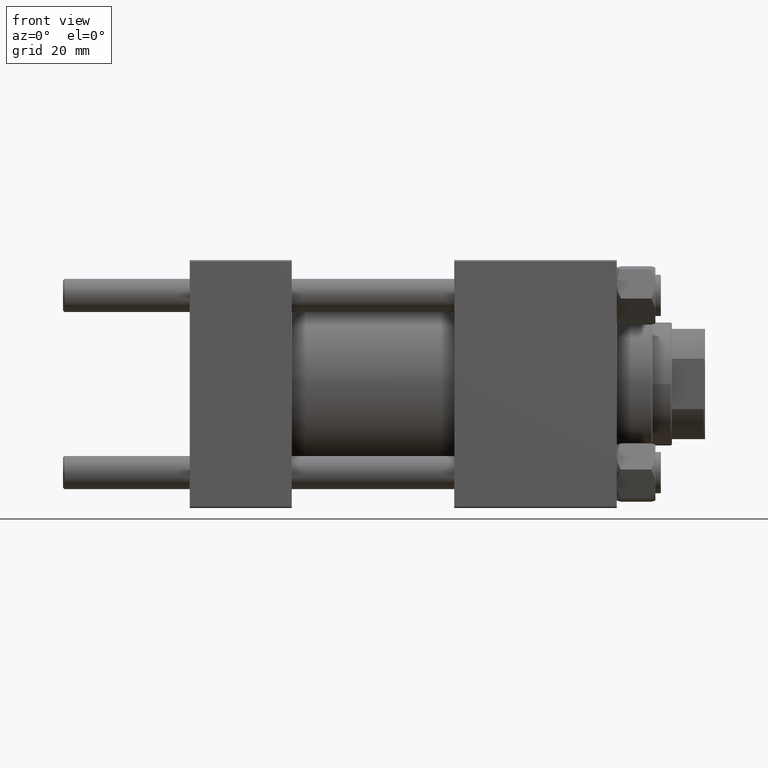
[diagram: clean part render]
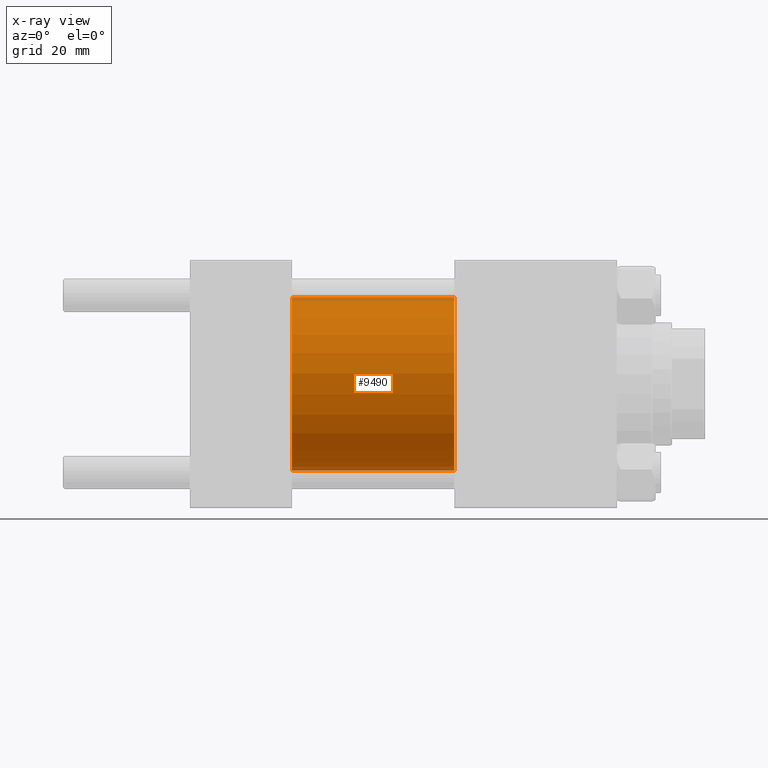
[diagram: x-ray — body ghosted, one internal face saturated and labeled with its STEP entity id]
A machine part, front view, then the same camera in x-ray: the body is ghosted and one INTERNAL B-rep face — a face not visible from any outside direction — is saturated and labeled: STEP entity #9490.
In plain terms, the highlighted cylindrical surface (partial cylindrical patch) has radius 31.5 mm, axis along (-1, -0, -0).
Its self-contained STEP definition (entity closure, byte-faithful):
#1592 = ORIENTED_EDGE ( 'NONE', *, *, #38220, .F. ) ;
#2812 = VECTOR ( 'NONE', #48753, 1000.000000000000000 ) ;
#4588 = DIRECTION ( 'NONE',  ( 0.000000000000000000, 0.000000000000000000, -1.000000000000000000 ) ) ;
#4639 = CARTESIAN_POINT ( 'NONE',  ( 96.00000000000000000, 0.000000000000000000, 31.50000000000000000 ) ) ;
#6895 = DIRECTION ( 'NONE',  ( -1.000000000000000000, -0.000000000000000000, -0.000000000000000000 ) ) ;
#8367 = DIRECTION ( 'NONE',  ( 1.000000000000000000, 0.000000000000000000, 0.000000000000000000 ) ) ;
#9060 = AXIS2_PLACEMENT_3D ( 'NONE', #31600, #8367, #4588 ) ;
#9490 = ADVANCED_FACE ( 'NONE', ( #42107 ), #19411, .F. ) ;
#9996 = AXIS2_PLACEMENT_3D ( 'NONE', #19430, #16577, #47836 ) ;
#10345 = ORIENTED_EDGE ( 'NONE', *, *, #44763, .T. ) ;
#10931 = CARTESIAN_POINT ( 'NONE',  ( 96.00000000000000000, 3.857637417314162689E-15, -31.50000000000000000 ) ) ;
#11082 = DIRECTION ( 'NONE',  ( -1.000000000000000000, -0.000000000000000000, -0.000000000000000000 ) ) ;
#12261 = VERTEX_POINT ( 'NONE', #49443 ) ;
#12784 = VECTOR ( 'NONE', #6895, 1000.000000000000000 ) ;
#16577 = DIRECTION ( 'NONE',  ( 1.000000000000000000, 0.000000000000000000, 0.000000000000000000 ) ) ;
#18263 = LINE ( 'NONE', #10931, #12784 ) ;
#19327 = EDGE_CURVE ( 'NONE', #12261, #30154, #18263, .T. ) ;
#19411 = CYLINDRICAL_SURFACE ( 'NONE', #45545, 31.50000000000000000 ) ;
#19430 = CARTESIAN_POINT ( 'NONE',  ( 96.00000000000000000, 0.000000000000000000, 0.000000000000000000 ) ) ;
#20975 = ORIENTED_EDGE ( 'NONE', *, *, #19327, .T. ) ;
#21160 = EDGE_LOOP ( 'NONE', ( #10345, #20975, #1592, #42899 ) ) ;
#22014 = LINE ( 'NONE', #33878, #2812 ) ;
#23197 = DIRECTION ( 'NONE',  ( 0.000000000000000000, 0.000000000000000000, 1.000000000000000000 ) ) ;
#29538 = CARTESIAN_POINT ( 'NONE',  ( 37.00000000000000000, 3.857637417314162689E-15, -31.50000000000000000 ) ) ;
#30154 = VERTEX_POINT ( 'NONE', #29538 ) ;
#31600 = CARTESIAN_POINT ( 'NONE',  ( 37.00000000000000000, 0.000000000000000000, 0.000000000000000000 ) ) ;
#33878 = CARTESIAN_POINT ( 'NONE',  ( 96.00000000000000000, 0.000000000000000000, 31.50000000000000000 ) ) ;
#38220 = EDGE_CURVE ( 'NONE', #42160, #30154, #46135, .T. ) ;
#40406 = CARTESIAN_POINT ( 'NONE',  ( 37.00000000000000000, 0.000000000000000000, 31.50000000000000000 ) ) ;
#42107 = FACE_OUTER_BOUND ( 'NONE', #21160, .T. ) ;
#42160 = VERTEX_POINT ( 'NONE', #40406 ) ;
#42859 = CARTESIAN_POINT ( 'NONE',  ( 96.00000000000000000, 0.000000000000000000, 0.000000000000000000 ) ) ;
#42899 = ORIENTED_EDGE ( 'NONE', *, *, #46806, .F. ) ;
#43376 = VERTEX_POINT ( 'NONE', #4639 ) ;
#44763 = EDGE_CURVE ( 'NONE', #43376, #12261, #47065, .T. ) ;
#45545 = AXIS2_PLACEMENT_3D ( 'NONE', #42859, #11082, #23197 ) ;
#46135 = CIRCLE ( 'NONE', #9060, 31.50000000000000000 ) ;
#46806 = EDGE_CURVE ( 'NONE', #43376, #42160, #22014, .T. ) ;
#47065 = CIRCLE ( 'NONE', #9996, 31.50000000000000000 ) ;
#47836 = DIRECTION ( 'NONE',  ( 0.000000000000000000, 0.000000000000000000, -1.000000000000000000 ) ) ;
#48753 = DIRECTION ( 'NONE',  ( -1.000000000000000000, -0.000000000000000000, -0.000000000000000000 ) ) ;
#49443 = CARTESIAN_POINT ( 'NONE',  ( 96.00000000000000000, 3.857637417314162689E-15, -31.50000000000000000 ) ) ;